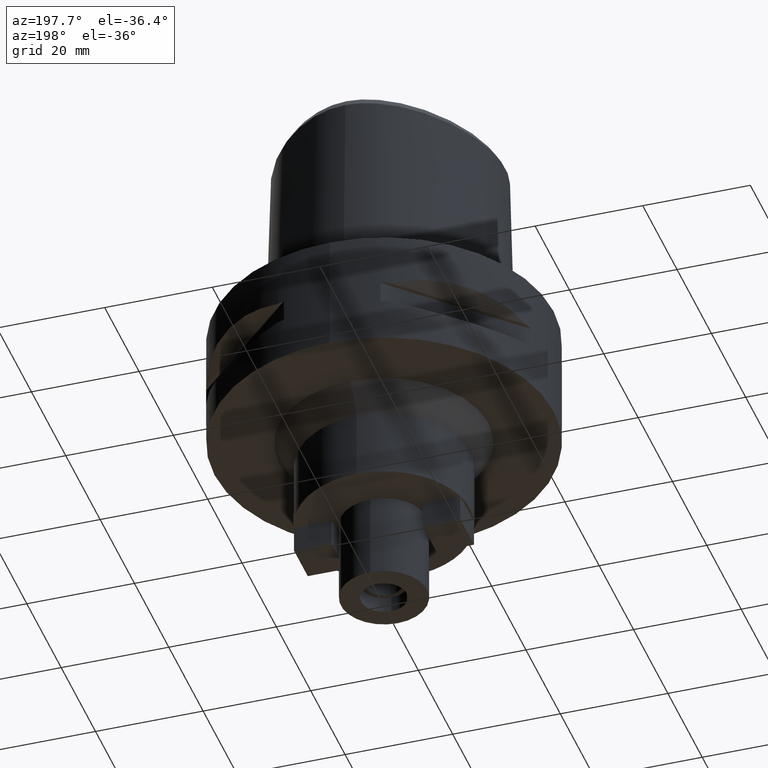
[diagram: clean part render]
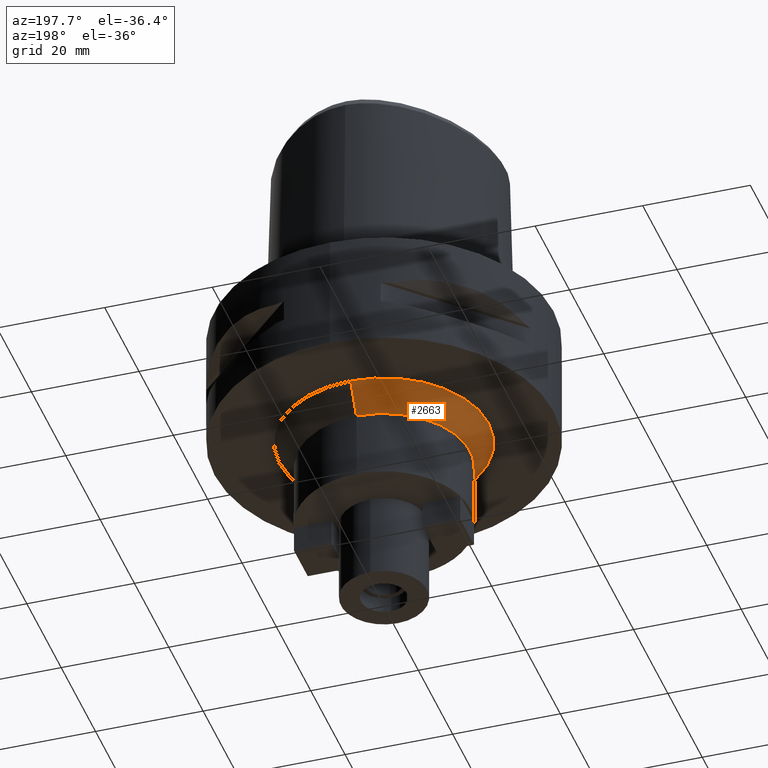
[diagram: same view with one face highlighted and labeled with its STEP entity id]
A machine part, auxiliary view. The second image highlights one B-rep face of the part: STEP entity #2663.
In plain terms, the highlighted conical surface has half-angle 33.328 deg.
Its self-contained STEP definition (entity closure, byte-faithful):
#539=CARTESIAN_POINT('',(0.E0,0.E0,-2.2E1));
#540=DIRECTION('',(0.E0,0.E0,-1.E0));
#541=DIRECTION('',(0.E0,-1.E0,0.E0));
#542=AXIS2_PLACEMENT_3D('',#539,#540,#541);
#555=DIRECTION('',(0.E0,5.494312049533E-1,-8.355389584116E-1));
#556=VECTOR('',#555,6.304912472320E0);
#557=CARTESIAN_POINT('',(0.E0,-1.946411565679E1,-2.2E1));
#558=LINE('',#557,#556);
#562=CARTESIAN_POINT('',(0.E0,0.E0,-2.7268E1));
#563=DIRECTION('',(0.E0,0.E0,-1.E0));
#564=DIRECTION('',(0.E0,-1.E0,0.E0));
#565=AXIS2_PLACEMENT_3D('',#562,#563,#564);
#570=DIRECTION('',(0.E0,-5.494312049533E-1,-8.355389584116E-1));
#571=VECTOR('',#570,6.304912472320E0);
#572=CARTESIAN_POINT('',(0.E0,1.946411565679E1,-2.2E1));
#573=LINE('',#572,#571);
#1730=CARTESIAN_POINT('',(0.E0,-1.946411565679E1,-2.2E1));
#1731=CARTESIAN_POINT('',(0.E0,1.946411565679E1,-2.2E1));
#1732=VERTEX_POINT('',#1730);
#1733=VERTEX_POINT('',#1731);
#1734=CARTESIAN_POINT('',(0.E0,1.6E1,-2.7268E1));
#1735=VERTEX_POINT('',#1734);
#1736=CARTESIAN_POINT('',(0.E0,-1.6E1,-2.7268E1));
#1737=VERTEX_POINT('',#1736);
#2649=CARTESIAN_POINT('',(0.E0,0.E0,-2.4634E1));
#2650=DIRECTION('',(0.E0,0.E0,1.E0));
#2651=DIRECTION('',(0.E0,1.E0,0.E0));
#2652=AXIS2_PLACEMENT_3D('',#2649,#2650,#2651);
#2653=CONICAL_SURFACE('',#2652,1.773205782840E1,3.3328E1);
#2655=ORIENTED_EDGE('',*,*,#2654,.F.);
#2656=ORIENTED_EDGE('',*,*,#2642,.F.);
#2658=ORIENTED_EDGE('',*,*,#2657,.T.);
#2660=ORIENTED_EDGE('',*,*,#2659,.T.);
#2661=EDGE_LOOP('',(#2655,#2656,#2658,#2660));
#2662=FACE_OUTER_BOUND('',#2661,.F.);
#543=CIRCLE('',#542,1.946411565679E1);
#566=CIRCLE('',#565,1.6E1);
#2642=EDGE_CURVE('',#1732,#1733,#543,.T.);
#2654=EDGE_CURVE('',#1733,#1735,#573,.T.);
#2657=EDGE_CURVE('',#1732,#1737,#558,.T.);
#2659=EDGE_CURVE('',#1737,#1735,#566,.T.);
#2663=ADVANCED_FACE('',(#2662),#2653,.T.);